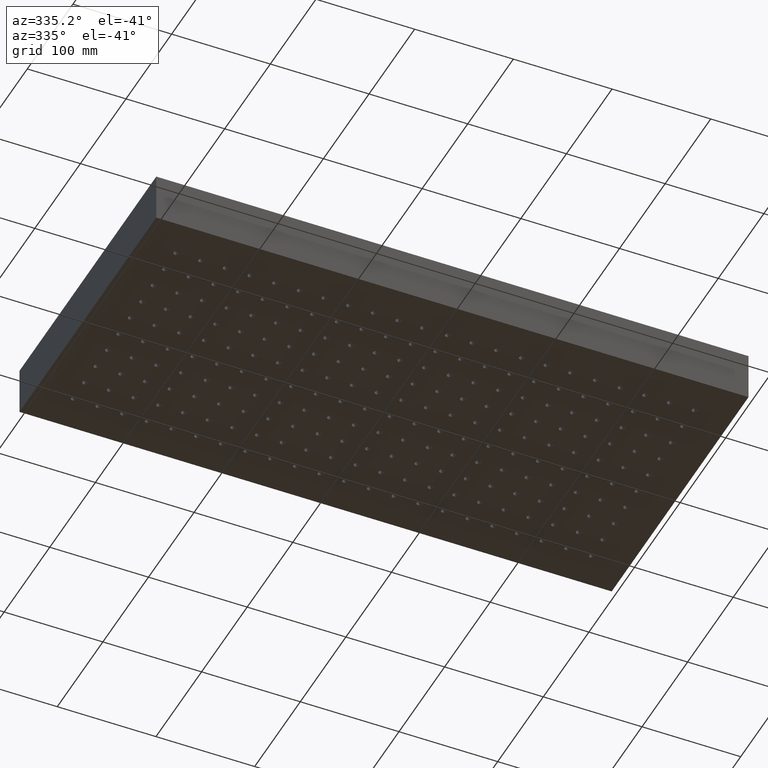
[diagram: clean part render]
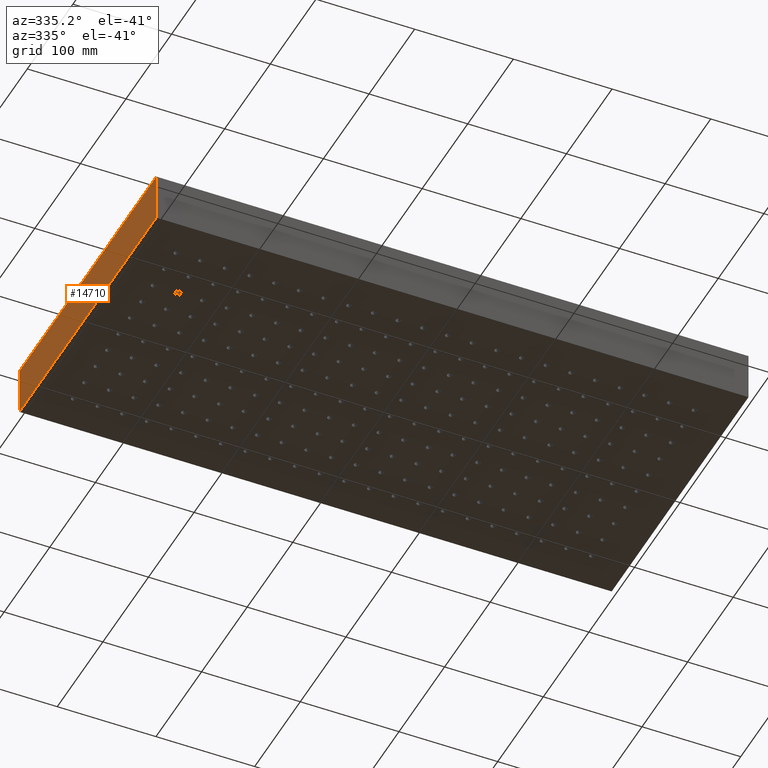
[diagram: same view with one face highlighted and labeled with its STEP entity id]
A machine part, auxiliary view. The second image highlights one B-rep face of the part: STEP entity #14710.
In plain terms, the highlighted planar face has unit normal (1, 0, -0).
Its self-contained STEP definition (entity closure, byte-faithful):
#505 = CARTESIAN_POINT ( 'NONE',  ( -300.0000000000000000, 150.0000000000000000, 50.00000000000000000 ) ) ;
#658 = LINE ( 'NONE', #10459, #7127 ) ;
#1280 = CARTESIAN_POINT ( 'NONE',  ( -300.0000000000000000, 150.0000000000000000, 50.00000000000000000 ) ) ;
#1576 = VERTEX_POINT ( 'NONE', #7991 ) ;
#2016 = AXIS2_PLACEMENT_3D ( 'NONE', #10998, #12232, #4680 ) ;
#2059 = PLANE ( 'NONE',  #2016 ) ;
#2719 = LINE ( 'NONE', #1280, #15756 ) ;
#3027 = CARTESIAN_POINT ( 'NONE',  ( -299.9999999999999400, -150.0000000000000000, 0.0000000000000000000 ) ) ;
#3416 = VERTEX_POINT ( 'NONE', #505 ) ;
#4009 = CARTESIAN_POINT ( 'NONE',  ( -299.9999999999999400, -150.0000000000000000, 50.00000000000000000 ) ) ;
#4182 = VERTEX_POINT ( 'NONE', #3027 ) ;
#4680 = DIRECTION ( 'NONE',  ( -1.850371707708594600E-016, 1.000000000000000000, 0.0000000000000000000 ) ) ;
#4907 = DIRECTION ( 'NONE',  ( -0.0000000000000000000, -0.0000000000000000000, -1.000000000000000000 ) ) ;
#5225 = LINE ( 'NONE', #12497, #14858 ) ;
#5429 = VERTEX_POINT ( 'NONE', #4009 ) ;
#7127 = VECTOR ( 'NONE', #12920, 1000.000000000000000 ) ;
#7619 = FACE_OUTER_BOUND ( 'NONE', #13195, .T. ) ;
#7738 = EDGE_CURVE ( 'NONE', #3416, #1576, #2719, .T. ) ;
#7991 = CARTESIAN_POINT ( 'NONE',  ( -300.0000000000000000, 150.0000000000000000, 0.0000000000000000000 ) ) ;
#8482 = EDGE_CURVE ( 'NONE', #1576, #4182, #658, .T. ) ;
#8602 = ORIENTED_EDGE ( 'NONE', *, *, #8482, .T. ) ;
#8742 = CARTESIAN_POINT ( 'NONE',  ( -299.9999999999999400, -150.0000000000000000, 50.00000000000000000 ) ) ;
#8908 = EDGE_CURVE ( 'NONE', #5429, #4182, #16396, .T. ) ;
#9006 = ORIENTED_EDGE ( 'NONE', *, *, #8908, .F. ) ;
#9153 = ORIENTED_EDGE ( 'NONE', *, *, #9538, .F. ) ;
#9538 = EDGE_CURVE ( 'NONE', #3416, #5429, #5225, .T. ) ;
#9760 = ORIENTED_EDGE ( 'NONE', *, *, #7738, .T. ) ;
#10459 = CARTESIAN_POINT ( 'NONE',  ( -300.0000000000000000, 150.0000000000000000, 0.0000000000000000000 ) ) ;
#10587 = VECTOR ( 'NONE', #4907, 1000.000000000000000 ) ;
#10998 = CARTESIAN_POINT ( 'NONE',  ( -300.0000000000000000, 150.0000000000000000, 50.00000000000000000 ) ) ;
#12232 = DIRECTION ( 'NONE',  ( 1.000000000000000000, 1.850371707708594600E-016, -0.0000000000000000000 ) ) ;
#12497 = CARTESIAN_POINT ( 'NONE',  ( -300.0000000000000000, 150.0000000000000000, 50.00000000000000000 ) ) ;
#12836 = DIRECTION ( 'NONE',  ( -0.0000000000000000000, -0.0000000000000000000, -1.000000000000000000 ) ) ;
#12920 = DIRECTION ( 'NONE',  ( 1.850371707708594300E-016, -1.000000000000000000, 0.0000000000000000000 ) ) ;
#13195 = EDGE_LOOP ( 'NONE', ( #8602, #9006, #9153, #9760 ) ) ;
#13766 = DIRECTION ( 'NONE',  ( 1.850371707708594300E-016, -1.000000000000000000, 0.0000000000000000000 ) ) ;
#14710 = ADVANCED_FACE ( 'NONE', ( #7619 ), #2059, .F. ) ;
#14858 = VECTOR ( 'NONE', #13766, 1000.000000000000000 ) ;
#15756 = VECTOR ( 'NONE', #12836, 1000.000000000000000 ) ;
#16396 = LINE ( 'NONE', #8742, #10587 ) ;